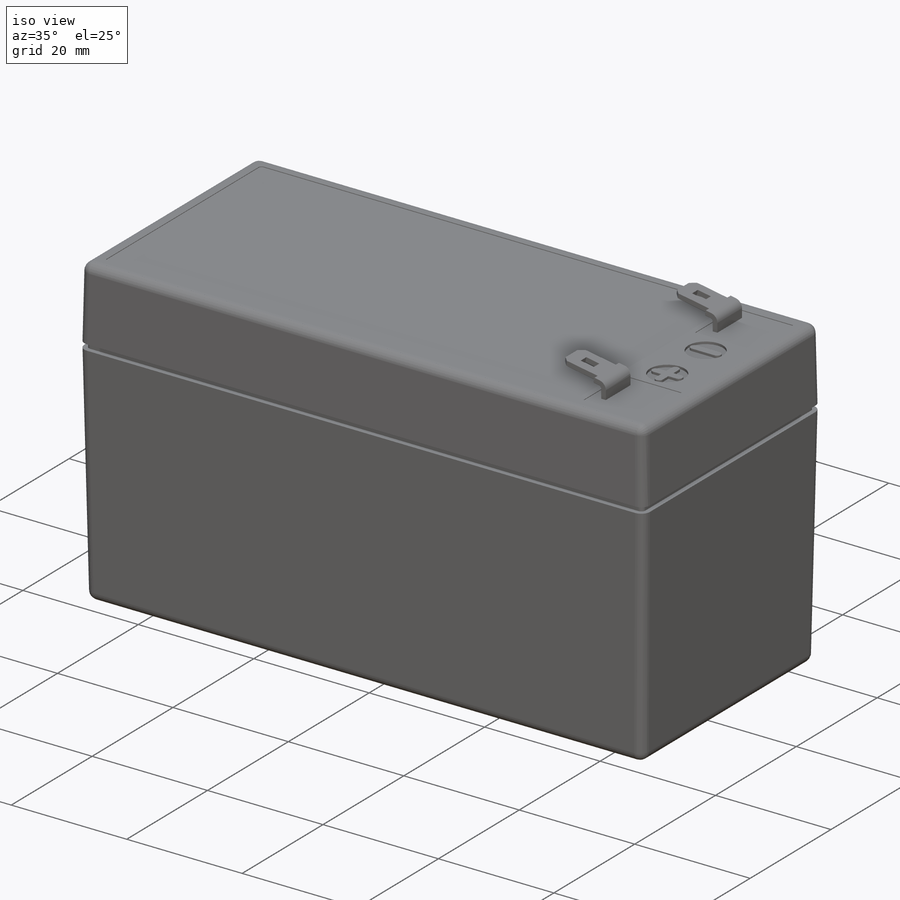
[diagram: iso view]
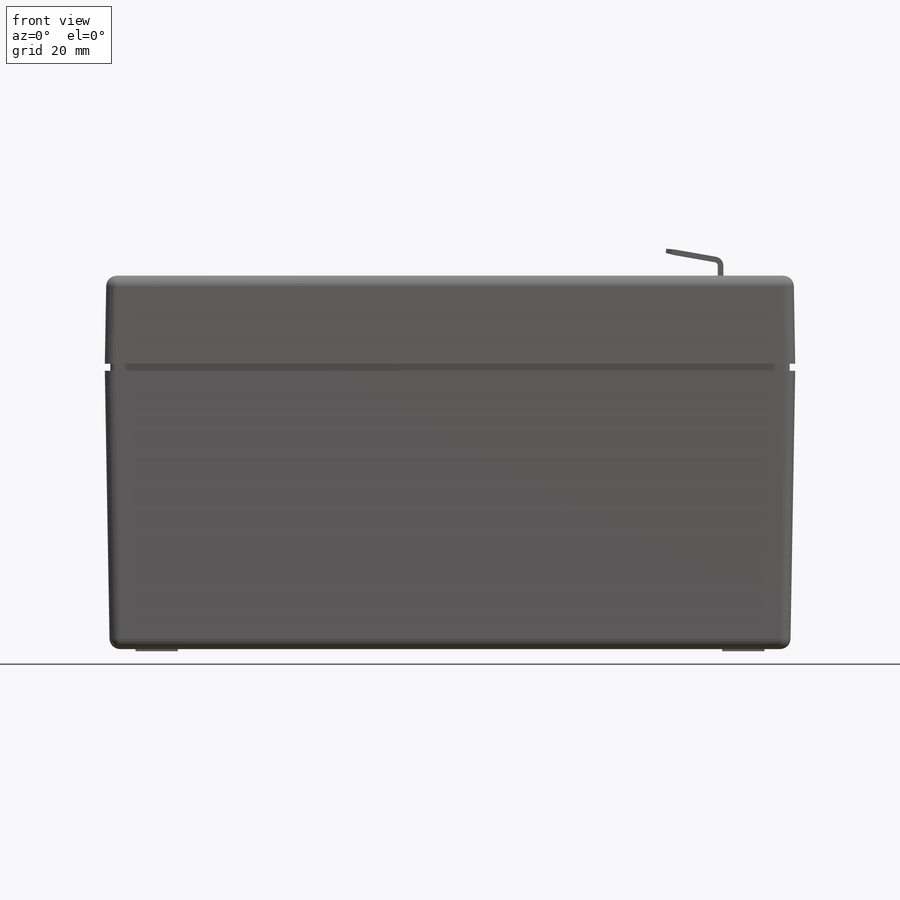
[diagram: front view]
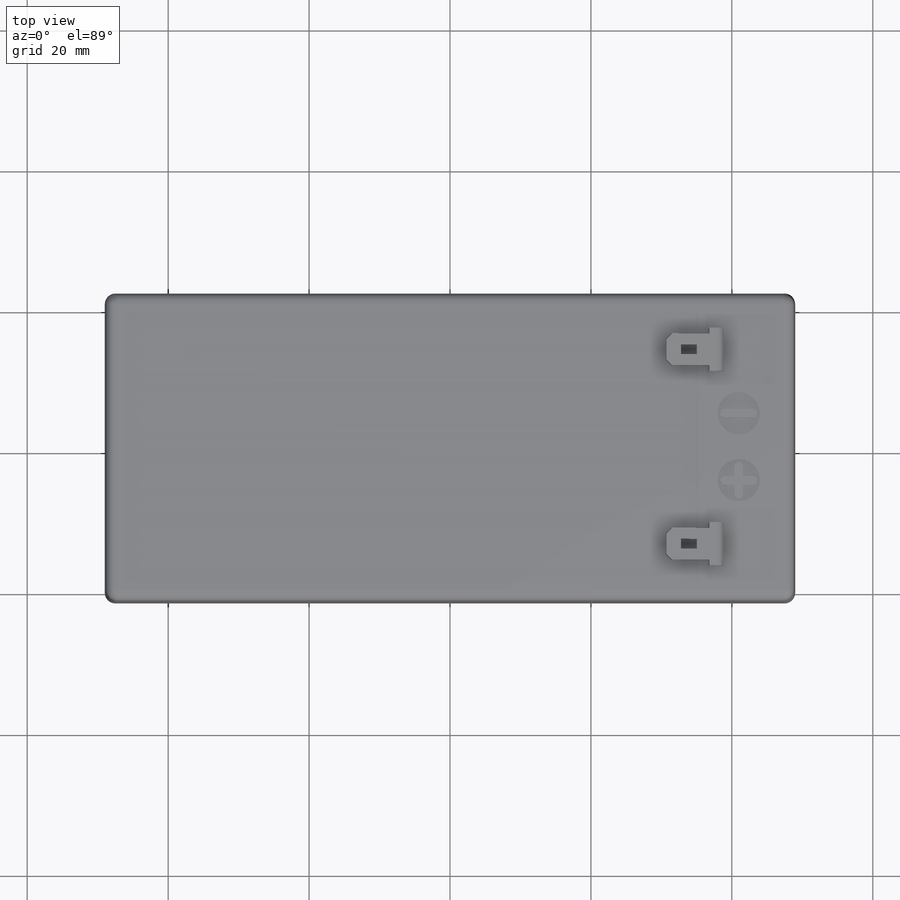
[diagram: top view]
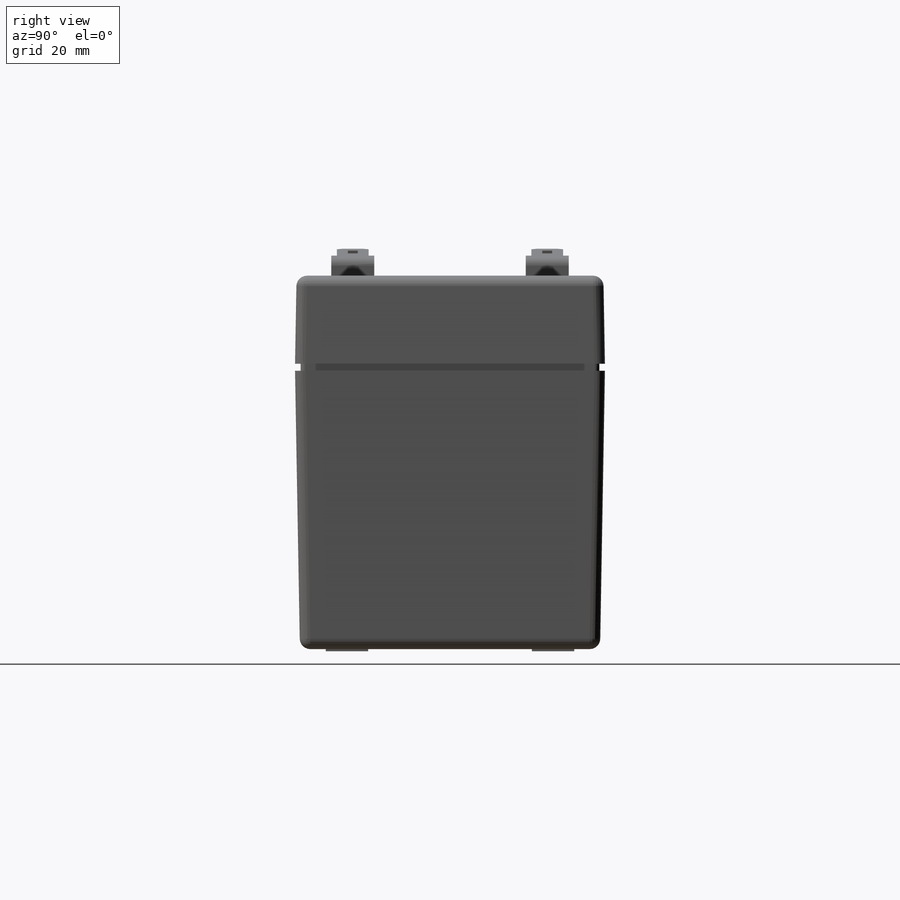
[diagram: right view]
SOLIDWORKS PART (.sldprt)
format: sldprt  version: not decoded by parser v0  size: 564,224 bytes
history: native  units: mm
features: sketch x11, cut_extrude x5, fillet x4, extrude x2, chamfer x2, material x1, sweep x1, mirror x1, plane x1 (+12 scaffold rows collapsed)
feature tree (40):
  scaffold x12  (default folders/planes/origin — collapsed)
  material  "Material <not specified>"
  sketch  "Sketch1"  dims[D1=98.0mm D2=44.0mm]
  extrude  "Extrude1"  Depth=13mm
  fillet  "Fillet1"  Radius=1.5mm
  sketch  "3DSketch1"
  sketch  "Sketch3"  dims[D1=1.0mm D2=0.8mm]
  sweep  "Cut-Sweep1"
  sketch  "Sketch4"  dims[D1=2.0mm D2=2.0mm D3=6.0mm D4=6.0mm D5=2.2mm D6=2.2mm D7=3.5mm D8=3.5mm D9=30.0mm]
  extrude  "Extrude3"  Depth=0.3mm
  cut_extrude  "Cut-Extrude1"  [1 undecoded]
  sketch  "Sketch4<3>"  dims[D1=0.5mm]
  sketch  "Sketch5"  dims[D1=1.0mm D2=1.0mm D3=1.0mm D4=12.0mm]
  cut_extrude  "Cut-Extrude2"  Depth=0.1mm
  fillet  "Fillet2"  Radius=0.5mm
  sketch  "Sketch6"  dims[D1=1.5mm D2=1.5mm D3=10.0mm D4=10.0mm D5=1.0mm]
  cut_extrude  "Cut-Extrude3"  Depth=0.1mm
  sketch  "Sketch7"  dims[c1.D1=2.5mm c1.D2=2.5mm c1.D3=8.2mm c1.D4=~3.973821mm c2.D4=100.0deg c2.D1=6.1mm c2.D19=10.75mm c2.D5=0.8mm c2.D6=1.0mm c2.D7=5.0mm]
  sketch  "Sketch8"  dims[D1=0.8mm D2=0.8mm D3=2.3mm D4=1.4mm]
  cut_extrude  "Cut-Extrude4"  [1 undecoded]
  mirror  "Mirror1"
  fillet  "Fillet3"  Radius=0.5mm
  fillet  "Fillet4"  Radius=1.3mm
  chamfer  "Chamfer1"  Distance=1.2mm Angle=5deg
  chamfer  "Chamfer2"  Distance=0.8mm Angle=45deg
  sketch  "Sketch9"  dims[D1=6.0mm D2=9.5mm D3=4.0mm D4=1.25mm]
  cut_extrude  "Cut-Extrude5"  Depth=0.4mm
  plane  "Plane1"  Offset=40.3mm
  sketch  "Component_Outline"
decode coverage: 20 of 26 modeling features carry decoded parameters
note: ~ marks probable driven/reference dimensions
note: 2 parameter values undecoded
note: suppression state not decoded; provenance and decode notes live in map.json
